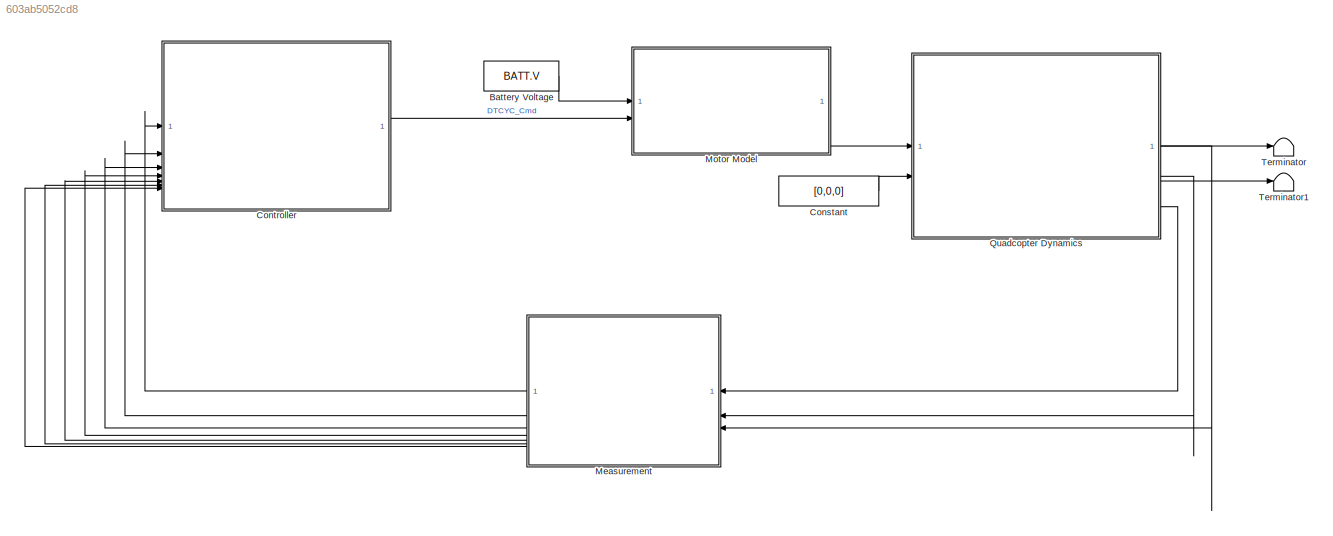
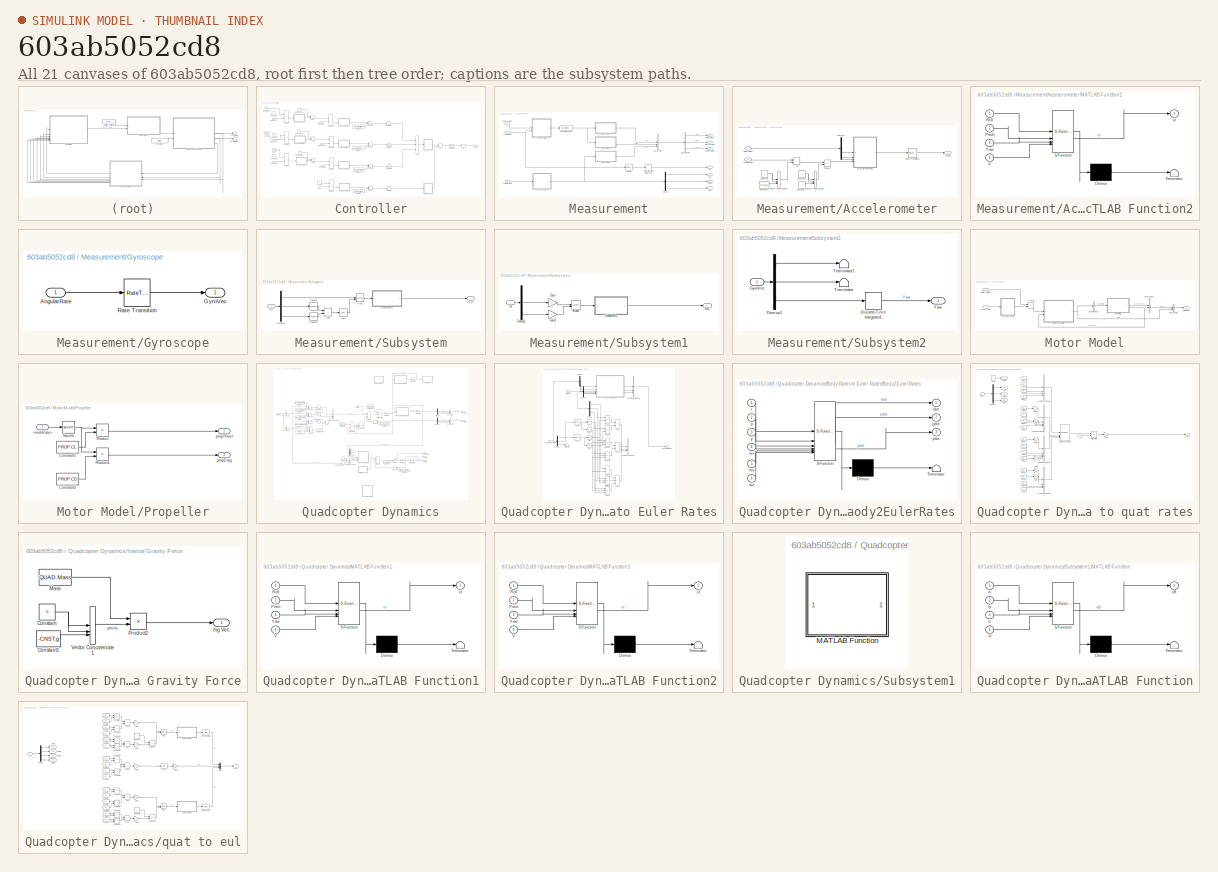
[diagram: thumbnail index - all 21 canvases of the model, root first then tree order]
MODEL slx_603ab5052cd8
KIND model
CONFIG AbsTol = auto
CONFIG EnableMultiTasking = off
CONFIG FixedStep = CNFG_TSTEP
CONFIG MaxStep = auto
CONFIG MinStep = auto
CONFIG RelTol = 1e-3
CONFIG SampleTimeConstraint = Unconstrained
CONFIG SolverName = FixedStepAuto
CONFIG StartTime = 0.0
CONFIG StopTime = CNFG_TEND
BLOCK [Constant] Battery Voltage
  SampleTime = 0
  Value = BATT.V
BLOCK [Constant] Constant
  Value = [0,0,0]
BLOCK [SubSystem] Controller
BLOCK [Sum] Controller/Add
  IconShape = rectangular
  Inputs = +++
BLOCK [Sum] Controller/Add1
  IconShape = rectangular
BLOCK [Sum] Controller/Add2
  IconShape = rectangular
BLOCK [Sum] Controller/Add3
  IconShape = rectangular
BLOCK [Sum] Controller/Add4
  IconShape = rectangular
BLOCK [Outport] Controller/Cmd
BLOCK [Rounding] Controller/Fix
  Operator = fix
BLOCK [Constant] Controller/Omega Cmd
  Value = 0
BLOCK [Constant] Controller/Omega Cmd1
  Value = 0
BLOCK [Constant] Controller/Omega Cmd2
  Value = 0
BLOCK [SubSystem] Controller/PI_to_DTCYC
  ReferencedSubsystem = subrMap
  XL = -1
  XU = 1
  YL = -500
  YU = 500
BLOCK [SubSystem] Controller/PI_to_DTCYC1
  ReferencedSubsystem = subrMap
  XL = -1
  XU = 1
  YL = 1000
  YU = 2000
BLOCK [Inport] Controller/PitchPosFb
  Port = 2
BLOCK [Inport] Controller/PitchRateFb
  NameLocation = top
  Port = 5
BLOCK [Product] Controller/Product
BLOCK [Product] Controller/Product1
BLOCK [Product] Controller/Product2
BLOCK [Product] Controller/Product6
BLOCK [Inport] Controller/RollPosFb
  Port = 3
BLOCK [Inport] Controller/RollRateFb
  NameLocation = top
  Port = 6
BLOCK [Saturate] Controller/Saturation
  LowerLimit = -0.2
  UpperLimit = 0.2
BLOCK [Saturate] Controller/Saturation1
  LowerLimit = -0.4
  UpperLimit = 0.4
BLOCK [Saturate] Controller/Saturation2
  LowerLimit = -0.4
  UpperLimit = 0.4
BLOCK [Saturate] Controller/Saturation3
  LowerLimit = -1
  UpperLimit = 1
BLOCK [Saturate] Controller/Saturation4
  LowerLimit = 1000
  UpperLimit = 2000
BLOCK [Sin] Controller/Sine Wave
  Amplitude = -2*pi/180
  Frequency = 2*2*pi
  SampleTime = 0
BLOCK [Sin] Controller/Sine Wave1
  Amplitude = -2*pi/180
  Frequency = 2*2*pi
  Phase = pi/2
  SampleTime = 0
BLOCK [Step] Controller/Step
  After = pi
  SampleTime = 0
  Time = 0
BLOCK [SubSystem] Controller/Subsystem
  Kd = 0
  Ki = 0.5
  Ki_Sat = inf
  Kp = 10
  ReferencedSubsystem = subrPID
  TSTEP = CNTR.TSTEP
BLOCK [SubSystem] Controller/Subsystem1
  Kd = 0
  Ki = 0.001
  Ki_Sat = inf
  Kp = 30
  ReferencedSubsystem = subrPID
  TSTEP = CNTR.TSTEP
BLOCK [SubSystem] Controller/Subsystem2
  Kd = 0
  Ki = 0.001
  Ki_Sat = inf
  Kp = 30
  ReferencedSubsystem = subrPID
  TSTEP = CNTR.TSTEP
BLOCK [SubSystem] Controller/Subsystem3
  Kd = 0
  Ki = 0
  Ki_Sat = inf
  Kp = 10
  ReferencedSubsystem = subrPID
  TSTEP = CNTR.TSTEP
BLOCK [SubSystem] Controller/Subsystem4
  Kd = 0
  Ki = 0
  Ki_Sat = inf
  Kp = 2
  ReferencedSubsystem = subrPID
  TSTEP = CNTR.TSTEP
BLOCK [SubSystem] Controller/Subsystem5
  Kd = 0
  Ki = 0
  Ki_Sat = inf
  Kp = 2
  ReferencedSubsystem = subrPID
  TSTEP = CNTR.TSTEP
BLOCK [SubSystem] Controller/Subsystem6
  Kd = 0
  Ki = 0
  Ki_Sat = inf
  Kp = 2
  ReferencedSubsystem = subrPID
  TSTEP = CNTR.TSTEP
BLOCK [Sum] Controller/Subtract1
  IconShape = rectangular
  Inputs = +-
BLOCK [Sum] Controller/Subtract2
  IconShape = rectangular
  Inputs = +-
BLOCK [Sum] Controller/Subtract3
  IconShape = rectangular
  Inputs = +-
BLOCK [Sum] Controller/Subtract4
  IconShape = rectangular
  Inputs = +-
BLOCK [Sum] Controller/Subtract5
  IconShape = rectangular
  Inputs = +-
BLOCK [Sum] Controller/Subtract6
  IconShape = rectangular
  Inputs = +-
BLOCK [Sum] Controller/Subtract7
  IconShape = rectangular
  Inputs = +-
BLOCK [Constant] Controller/Theta Cmd1
  Value = 0.2
BLOCK [Constant] Controller/Theta Cmd2
  Value = 0.1
BLOCK [Constant] Controller/Theta Cmd3
  Value = 0
BLOCK [Inport] Controller/Vz
  Port = 7
BLOCK [Constant] Controller/Vz Cmd
  Value = 0
BLOCK [Inport] Controller/YawPosFb
BLOCK [Inport] Controller/YawRateFb
  NameLocation = top
  Port = 4
BLOCK [Constant] Controller/tqmap
  Value = QUAD.PitchMap
BLOCK [Constant] Controller/tqmap2
  Value = QUAD.RollMap
BLOCK [Constant] Controller/tqmap3
  Value = QUAD.VelMap
BLOCK [Constant] Controller/tqmap6
  Value = QUAD.YawMap
BLOCK [SubSystem] Measurement
BLOCK [Outport] Measurement/<wx>
  Port = 6
BLOCK [Outport] Measurement/<wy>
  Port = 5
BLOCK [Outport] Measurement/<wz>
  Port = 4
BLOCK [Inport] Measurement/Acceleration
BLOCK [SubSystem] Measurement/Accelerometer
BLOCK [Inport] Measurement/Accelerometer/Acceleration
  Port = 2
BLOCK [Outport] Measurement/Accelerometer/AcclVec
BLOCK [Sum] Measurement/Accelerometer/Add
  IconShape = rectangular
BLOCK [Constant] Measurement/Accelerometer/Constant
  Value = 0
BLOCK [Constant] Measurement/Accelerometer/Constant1
  Value = +CNST.g
BLOCK [Constant] Measurement/Accelerometer/Constant2
  Value = -1
BLOCK [Constant] Measurement/Accelerometer/Constant3
  Value = 0
BLOCK [Demux] Measurement/Accelerometer/Demux3
  Outputs = 3
BLOCK [Inport] Measurement/Accelerometer/EulerAngles
BLOCK [SubSystem] Measurement/Accelerometer/MATLAB Function2
  ErrorFcn = Stateflow.Translate.translate
  PermitHierarchicalResolution = ExplicitOnly
  SFBlockType = MATLAB Function
  TreatAsAtomicUnit = on
BLOCK [Demux] Measurement/Accelerometer/MATLAB Function2/ Demux 
  Outputs = 1
BLOCK [S-Function] Measurement/Accelerometer/MATLAB Function2/ SFunction 
  EnableBusSupport = on
  FunctionName = sf_sfun
  PortCounts = [4 2]
  SFcnIsStateOwnerBlock = off
  SFunctionDeploymentMode = off
  Tag = Stateflow S-Function 4
BLOCK [Terminator] Measurement/Accelerometer/MATLAB Function2/ Terminator 
BLOCK [Inport] Measurement/Accelerometer/MATLAB Function2/Pitch
  Port = 2
BLOCK [Inport] Measurement/Accelerometer/MATLAB Function2/Roll
BLOCK [Inport] Measurement/Accelerometer/MATLAB Function2/V
  Port = 4
BLOCK [Inport] Measurement/Accelerometer/MATLAB Function2/Yaw
  Port = 3
BLOCK [Outport] Measurement/Accelerometer/MATLAB Function2/vI
BLOCK [Product] Measurement/Accelerometer/Product
BLOCK [RateTransition] Measurement/Accelerometer/Rate Transition1
  OutPortSampleTime = CNTR.TSTEP
BLOCK [Concatenate] Measurement/Accelerometer/Vector Concatenate1
  NumInputs = 3
BLOCK [Concatenate] Measurement/Accelerometer/Vector Concatenate2
  NumInputs = 3
BLOCK [Inport] Measurement/AngularRate
  Port = 2
BLOCK [BusCreator] Measurement/Bus Creator
  DisplayOption = bar
  InheritFromInputs = on
  Inputs = 3
BLOCK [BusSelector] Measurement/Bus Selector
  OutputSignals = Roll,Pitch,Yaw
BLOCK [Demux] Measurement/Demux
  Outputs = 3
BLOCK [DiscreteIntegrator] Measurement/Discrete-Time Integrator
  ICPrevOutput = DiscIntNeverNeededParam
  ICPrevScaledInput = DiscIntNeverNeededParam
  InitialConditionSetting = Auto
  IntegratorMethod = Integration: Backward Euler
  SampleTime = -1
BLOCK [Inport] Measurement/EulerAngles
  Port = 3
BLOCK [SubSystem] Measurement/Gyroscope
BLOCK [Inport] Measurement/Gyroscope/AngularRate
BLOCK [Outport] Measurement/Gyroscope/GyroVec
BLOCK [RateTransition] Measurement/Gyroscope/Rate Transition
  OutPortSampleTime = CNTR.TSTEP
BLOCK [Reference] Measurement/Normalize Vector  REF=vrlib/Utilities/Normalize Vector
  SourceBlock = vrlib/Utilities/Normalize Vector
  SourceType = Normalize Vector
BLOCK [Outport] Measurement/PitchPosMeas
  Port = 2
BLOCK [Outport] Measurement/RollPosMeas
  Port = 3
BLOCK [Selector] Measurement/Selector
  IndexOptions = Index vector (dialog)
  Indices = [3]
  InputPortWidth = 3
  OutputSizes = 1
BLOCK [SubSystem] Measurement/Subsystem
BLOCK [Sum] Measurement/Subsystem/Add1
  IconShape = rectangular
BLOCK [Trigonometry] Measurement/Subsystem/Atan1
  Operator = atan2
BLOCK [Demux] Measurement/Subsystem/Demux1
  Outputs = 3
BLOCK [Inport] Measurement/Subsystem/In1
BLOCK [Outport] Measurement/Subsystem/Pitch
BLOCK [Sqrt] Measurement/Subsystem/Sqrt
  IntermediateResultsDataTypeStr = double
BLOCK [Math] Measurement/Subsystem/Square
  Operator = square
BLOCK [Math] Measurement/Subsystem/Square3
  Operator = square
BLOCK [SubSystem] Measurement/Subsystem/Subsystem1
  ReferencedSubsystem = subrUnwrap
BLOCK [SubSystem] Measurement/Subsystem1
BLOCK [Trigonometry] Measurement/Subsystem1/Atan1
  Operator = atan2
BLOCK [Demux] Measurement/Subsystem1/Demux1
  Outputs = 3
BLOCK [Gain] Measurement/Subsystem1/Gain
  Gain = -1
BLOCK [Gain] Measurement/Subsystem1/Gain2
  Gain = -1
BLOCK [Inport] Measurement/Subsystem1/In1
BLOCK [Outport] Measurement/Subsystem1/Roll
BLOCK [SubSystem] Measurement/Subsystem1/Subsystem1
  ReferencedSubsystem = subrUnwrap
BLOCK [SubSystem] Measurement/Subsystem2
BLOCK [Demux] Measurement/Subsystem2/Demux1
  Outputs = 3
BLOCK [DiscreteIntegrator] Measurement/Subsystem2/Discrete-Time Integrator1
  ICPrevOutput = DiscIntNeverNeededParam
  ICPrevScaledInput = DiscIntNeverNeededParam
  InitialConditionSetting = Auto
  IntegratorMethod = Integration: Backward Euler
  SampleTime = -1
BLOCK [Inport] Measurement/Subsystem2/GyroVec
BLOCK [Terminator] Measurement/Subsystem2/Terminator
BLOCK [Terminator] Measurement/Subsystem2/Terminator1
BLOCK [Outport] Measurement/Subsystem2/Yaw
BLOCK [Outport] Measurement/Vz
  Port = 7
BLOCK [Outport] Measurement/YawPosMeas
BLOCK [SubSystem] Motor Model
BLOCK [Inport] Motor Model/Battery Voltage
BLOCK [BusCreator] Motor Model/Bus Creator
  DisplayOption = bar
  InheritFromInputs = on
  Inputs = 2
BLOCK [BusCreator] Motor Model/Bus Creator1
  DisplayOption = bar
  InheritFromInputs = on
  Inputs = 2
BLOCK [BusSelector] Motor Model/Bus Selector1
  OutputSignals = motrRate
BLOCK [Inport] Motor Model/DTCYC_Cmd
  Port = 2
BLOCK [SubSystem] Motor Model/DTCYC_to_Vscale
  ReferencedSubsystem = subrMap
  XL = 1000
  XU = 2000
  YL = 0
  YU = 1
BLOCK [Outport] Motor Model/MotorBus
BLOCK [Product] Motor Model/Product7
BLOCK [SubSystem] Motor Model/Propeller
BLOCK [Inport] Motor Model/Propeller/<motrRate>
BLOCK [Constant] Motor Model/Propeller/Constant1
  Value = PROP.CL
BLOCK [Constant] Motor Model/Propeller/Constant2
  Value = PROP.CD
BLOCK [Product] Motor Model/Propeller/Product
BLOCK [Product] Motor Model/Propeller/Product1
BLOCK [Math] Motor Model/Propeller/Square
  Operator = square
BLOCK [Outport] Motor Model/Propeller/propDrag
  Port = 2
BLOCK [Outport] Motor Model/Propeller/propThrust
BLOCK [SubSystem] Motor Model/Single Phase Motor
  B = MOTR.B
  D = MOTR.D
  J = MOTR.J
  KB = MOTR.KB
  KT = MOTR.KT
  LL = MOTR.LL
  RL = MOTR.RL
  ReferencedSubsystem = subrSinglePhaseMotor
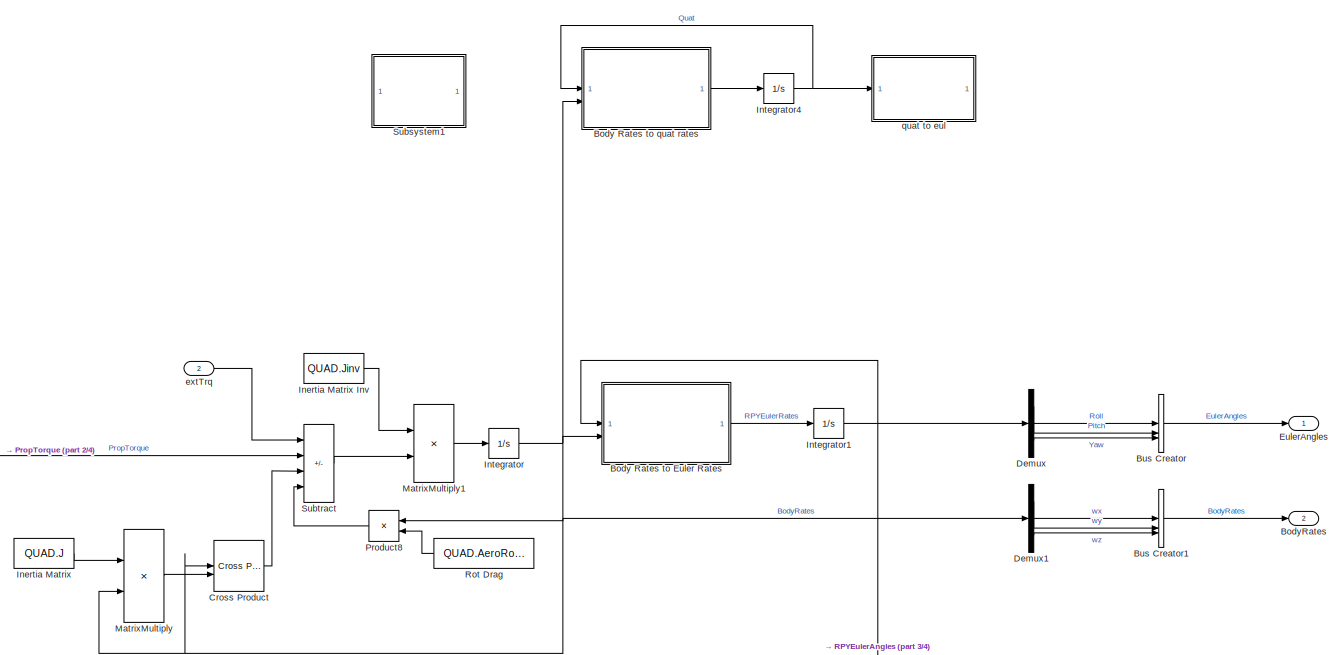
[diagram: Quadcopter Dynamics - part 1/4, top center region]
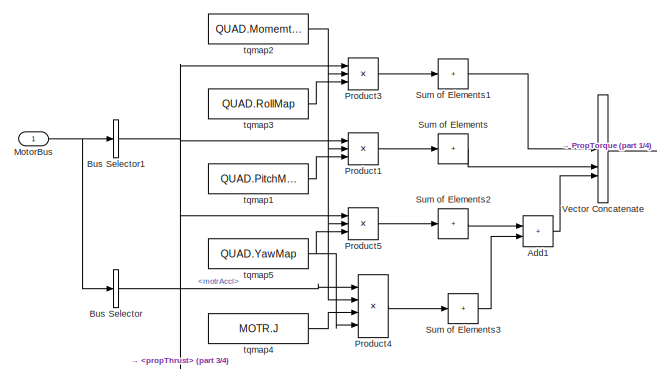
[diagram: Quadcopter Dynamics - part 2/4, middle left region]
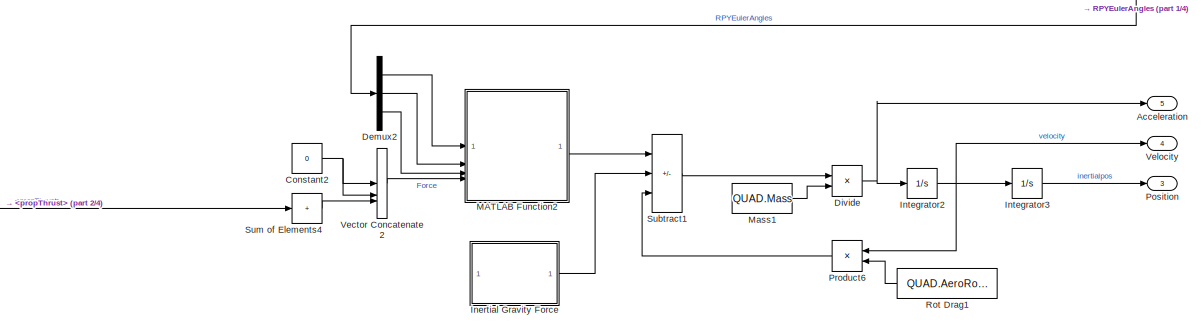
[diagram: Quadcopter Dynamics - part 3/4, bottom center region]
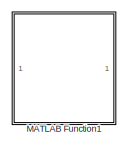
[diagram: Quadcopter Dynamics - part 4/4, bottom center region]
BLOCK [SubSystem] Quadcopter Dynamics
BLOCK [Outport] Quadcopter Dynamics/Acceleration
  Port = 5
BLOCK [Sum] Quadcopter Dynamics/Add1
  IconShape = rectangular
BLOCK [SubSystem] Quadcopter Dynamics/Body Rates to Euler Rates
BLOCK [Sum] Quadcopter Dynamics/Body Rates to Euler Rates/Add
  Commented = on
  IconShape = rectangular
BLOCK [Sum] Quadcopter Dynamics/Body Rates to Euler Rates/Add1
  Commented = on
  IconShape = rectangular
  Inputs = +-
BLOCK [Sum] Quadcopter Dynamics/Body Rates to Euler Rates/Add2
  Commented = on
  IconShape = rectangular
  Inputs = +++
BLOCK [SubSystem] Quadcopter Dynamics/Body Rates to Euler Rates/Body2EulerRates
  ErrorFcn = Stateflow.Translate.translate
  PermitHierarchicalResolution = ExplicitOnly
  SFBlockType = MATLAB Function
  TreatAsAtomicUnit = on
BLOCK [Demux] Quadcopter Dynamics/Body Rates to Euler Rates/Body2EulerRates/ Demux 
  Outputs = 1
BLOCK [S-Function] Quadcopter Dynamics/Body Rates to Euler Rates/Body2EulerRates/ SFunction 
  EnableBusSupport = on
  FunctionName = sf_sfun
  PortCounts = [6 4]
  SFcnIsStateOwnerBlock = off
  SFunctionDeploymentMode = off
  Tag = Stateflow S-Function 3
BLOCK [Terminator] Quadcopter Dynamics/Body Rates to Euler Rates/Body2EulerRates/ Terminator 
BLOCK [Inport] Quadcopter Dynamics/Body Rates to Euler Rates/Body2EulerRates/p
  Port = 2
BLOCK [Outport] Quadcopter Dynamics/Body Rates to Euler Rates/Body2EulerRates/pdot
  Port = 2
BLOCK [Inport] Quadcopter Dynamics/Body Rates to Euler Rates/Body2EulerRates/r
BLOCK [Outport] Quadcopter Dynamics/Body Rates to Euler Rates/Body2EulerRates/rdot
BLOCK [Inport] Quadcopter Dynamics/Body Rates to Euler Rates/Body2EulerRates/wx
  Port = 4
BLOCK [Inport] Quadcopter Dynamics/Body Rates to Euler Rates/Body2EulerRates/wy
  Port = 5
BLOCK [Inport] Quadcopter Dynamics/Body Rates to Euler Rates/Body2EulerRates/wz
  Port = 6
BLOCK [Inport] Quadcopter Dynamics/Body Rates to Euler Rates/Body2EulerRates/y
  Port = 3
BLOCK [Outport] Quadcopter Dynamics/Body Rates to Euler Rates/Body2EulerRates/ydot
  Port = 3
BLOCK [Trigonometry] Quadcopter Dynamics/Body Rates to Euler Rates/Cos1
  Commented = on
  Operator = cos
BLOCK [Trigonometry] Quadcopter Dynamics/Body Rates to Euler Rates/Cos2
  Commented = on
  Operator = cos
BLOCK [Demux] Quadcopter Dynamics/Body Rates to Euler Rates/Demux
  Commented = on
  Outputs = 3
BLOCK [Demux] Quadcopter Dynamics/Body Rates to Euler Rates/Demux1
  Outputs = 3
BLOCK [Demux] Quadcopter Dynamics/Body Rates to Euler Rates/Demux2
  Outputs = 3
BLOCK [Demux] Quadcopter Dynamics/Body Rates to Euler Rates/Demux3
  Outputs = 3
BLOCK [Product] Quadcopter Dynamics/Body Rates to Euler Rates/Divide
  Commented = on
  Inputs = **
BLOCK [Product] Quadcopter Dynamics/Body Rates to Euler Rates/Divide1
  Commented = on
  Inputs = ***
BLOCK [Product] Quadcopter Dynamics/Body Rates to Euler Rates/Divide2
  Commented = on
  Inputs = ***
BLOCK [Inport] Quadcopter Dynamics/Body Rates to Euler Rates/Omega
  Port = 2
BLOCK [SignalConversion] Quadcopter Dynamics/Body Rates to Euler Rates/Phi
  Commented = on
  OverrideOpt = off
BLOCK [Product] Quadcopter Dynamics/Body Rates to Euler Rates/Product
  Commented = on
BLOCK [Product] Quadcopter Dynamics/Body Rates to Euler Rates/Product1
  Commented = on
BLOCK [Product] Quadcopter Dynamics/Body Rates to Euler Rates/Product2
  Commented = on
  Inputs = 3
BLOCK [Product] Quadcopter Dynamics/Body Rates to Euler Rates/Product3
  Commented = on
  Inputs = 3
BLOCK [Inport] Quadcopter Dynamics/Body Rates to Euler Rates/RPY Euler Angles
BLOCK [Outport] Quadcopter Dynamics/Body Rates to Euler Rates/RPY Euler Rates
BLOCK [Trigonometry] Quadcopter Dynamics/Body Rates to Euler Rates/Sin2
  Commented = on
BLOCK [Trigonometry] Quadcopter Dynamics/Body Rates to Euler Rates/Tan
  Commented = on
BLOCK [Terminator] Quadcopter Dynamics/Body Rates to Euler Rates/Terminator
BLOCK [SignalConversion] Quadcopter Dynamics/Body Rates to Euler Rates/Theta
  Commented = on
  OverrideOpt = off
BLOCK [Concatenate] Quadcopter Dynamics/Body Rates to Euler Rates/Vector Concatenate
  Commented = on
  NumInputs = 3
BLOCK [Concatenate] Quadcopter Dynamics/Body Rates to Euler Rates/Vector Concatenate1
  NumInputs = 3
BLOCK [SubSystem] Quadcopter Dynamics/Body Rates to quat rates
  Commented = on
BLOCK [Demux] Quadcopter Dynamics/Body Rates to quat rates/Demux2
  Outputs = 3
BLOCK [From] Quadcopter Dynamics/Body Rates to quat rates/From
  GotoTag = z
BLOCK [From] Quadcopter Dynamics/Body Rates to quat rates/From1
  GotoTag = z
BLOCK [From] Quadcopter Dynamics/Body Rates to quat rates/From10
  GotoTag = wy
BLOCK [From] Quadcopter Dynamics/Body Rates to quat rates/From11
  GotoTag = wy
BLOCK [From] Quadcopter Dynamics/Body Rates to quat rates/From12
  GotoTag = wz
BLOCK [From] Quadcopter Dynamics/Body Rates to quat rates/From13
  GotoTag = wz
BLOCK [From] Quadcopter Dynamics/Body Rates to quat rates/From14
  GotoTag = wz
BLOCK [From] Quadcopter Dynamics/Body Rates to quat rates/From15
  GotoTag = wz
BLOCK [From] Quadcopter Dynamics/Body Rates to quat rates/From2
  GotoTag = z
BLOCK [From] Quadcopter Dynamics/Body Rates to quat rates/From3
  GotoTag = z
BLOCK [From] Quadcopter Dynamics/Body Rates to quat rates/From4
  GotoTag = wx
BLOCK [From] Quadcopter Dynamics/Body Rates to quat rates/From5
  GotoTag = wx
BLOCK [From] Quadcopter Dynamics/Body Rates to quat rates/From6
  GotoTag = wx
BLOCK [From] Quadcopter Dynamics/Body Rates to quat rates/From7
  GotoTag = wx
BLOCK [From] Quadcopter Dynamics/Body Rates to quat rates/From8
  GotoTag = wy
BLOCK [From] Quadcopter Dynamics/Body Rates to quat rates/From9
  GotoTag = wy
BLOCK [Gain] Quadcopter Dynamics/Body Rates to quat rates/Gain1
  Gain = -1
BLOCK [Gain] Quadcopter Dynamics/Body Rates to quat rates/Gain2
  Gain = -1
BLOCK [Gain] Quadcopter Dynamics/Body Rates to quat rates/Gain3
  Gain = -1
BLOCK [Gain] Quadcopter Dynamics/Body Rates to quat rates/Gain4
  Gain = -1
BLOCK [Gain] Quadcopter Dynamics/Body Rates to quat rates/Gain5
  Gain = -1
BLOCK [Gain] Quadcopter Dynamics/Body Rates to quat rates/Gain6
  Gain = 0.5
BLOCK [Gain] Quadcopter Dynamics/Body Rates to quat rates/Gain7
  Gain = -1
BLOCK [Goto] Quadcopter Dynamics/Body Rates to quat rates/Goto
  GotoTag = wx
BLOCK [Goto] Quadcopter Dynamics/Body Rates to quat rates/Goto1
  GotoTag = wy
BLOCK [Goto] Quadcopter Dynamics/Body Rates to quat rates/Goto2
  GotoTag = wz
BLOCK [Goto] Quadcopter Dynamics/Body Rates to quat rates/Goto3
  GotoTag = z
BLOCK [Concatenate] Quadcopter Dynamics/Body Rates to quat rates/Matrix Concatenate
  ConcatenateDimension = 2
  Mode = Multidimensional array
  NumInputs = 4
BLOCK [Product] Quadcopter Dynamics/Body Rates to quat rates/MatrixMultiply
  Multiplication = Matrix(*)
BLOCK [Inport] Quadcopter Dynamics/Body Rates to quat rates/Omega
  Port = 2
BLOCK [Concatenate] Quadcopter Dynamics/Body Rates to quat rates/Vector Concatenate1
  NumInputs = 4
BLOCK [Concatenate] Quadcopter Dynamics/Body Rates to quat rates/Vector Concatenate2
  NumInputs = 4
BLOCK [Concatenate] Quadcopter Dynamics/Body Rates to quat rates/Vector Concatenate3
  NumInputs = 4
BLOCK [Concatenate] Quadcopter Dynamics/Body Rates to quat rates/Vector Concatenate4
  NumInputs = 4
BLOCK [Constant] Quadcopter Dynamics/Body Rates to quat rates/Zero
  OutDataTypeStr = Inherit: Inherit via back propagation
  Value = 0
BLOCK [Outport] Quadcopter Dynamics/Body Rates to quat rates/dq
BLOCK [Inport] Quadcopter Dynamics/Body Rates to quat rates/q
BLOCK [Outport] Quadcopter Dynamics/BodyRates
  Port = 2
BLOCK [BusCreator] Quadcopter Dynamics/Bus Creator
  DisplayOption = bar
  InheritFromInputs = on
  Inputs = 3
BLOCK [BusCreator] Quadcopter Dynamics/Bus Creator1
  DisplayOption = bar
  InheritFromInputs = on
  Inputs = 3
BLOCK [BusSelector] Quadcopter Dynamics/Bus Selector
  OutputSignals = Motor.motrAccl
BLOCK [BusSelector] Quadcopter Dynamics/Bus Selector1
  OutputSignals = Prop.propThrust
BLOCK [Constant] Quadcopter Dynamics/Constant2
  Value = 0
BLOCK [Reference] Quadcopter Dynamics/Cross Product  REF=matrix_library/Cross Product
  LibrarySourceBlock = simulink/Matrix\nOperations/Cross Product
  SourceBlock = matrix_library/Cross Product
  SourceType = CrossProduct
BLOCK [Demux] Quadcopter Dynamics/Demux
  Outputs = 3
BLOCK [Demux] Quadcopter Dynamics/Demux1
  Outputs = 3
BLOCK [Demux] Quadcopter Dynamics/Demux2
  Outputs = 3
BLOCK [Product] Quadcopter Dynamics/Divide
  Inputs = */
BLOCK [Outport] Quadcopter Dynamics/EulerAngles
BLOCK [Constant] Quadcopter Dynamics/Inertia Matrix
  Value = QUAD.J
BLOCK [Constant] Quadcopter Dynamics/Inertia Matrix Inv
  Value = QUAD.Jinv
BLOCK [SubSystem] Quadcopter Dynamics/Inertial Gravity Force
BLOCK [Constant] Quadcopter Dynamics/Inertial Gravity Force/Constant
  Value = 0
BLOCK [Constant] Quadcopter Dynamics/Inertial Gravity Force/Constant1
  Value = -CNST.g
BLOCK [Constant] Quadcopter Dynamics/Inertial Gravity Force/Mass
  Value = QUAD.Mass
BLOCK [Product] Quadcopter Dynamics/Inertial Gravity Force/Product2
BLOCK [Concatenate] Quadcopter Dynamics/Inertial Gravity Force/Vector Concatenate1
  NumInputs = 3
BLOCK [Outport] Quadcopter Dynamics/Inertial Gravity Force/mg Vec
BLOCK [Integrator] Quadcopter Dynamics/Integrator
BLOCK [Integrator] Quadcopter Dynamics/Integrator1
  InitialCondition = [QUAD.RollIC, QUAD.PitchIC, Quad.YawIC]
BLOCK [Integrator] Quadcopter Dynamics/Integrator2
BLOCK [Integrator] Quadcopter Dynamics/Integrator3
BLOCK [Integrator] Quadcopter Dynamics/Integrator4
  Commented = on
  InitialCondition = [1,0,0,0]
BLOCK [SubSystem] Quadcopter Dynamics/MATLAB Function1
  Commented = on
  ErrorFcn = Stateflow.Translate.translate
  PermitHierarchicalResolution = ExplicitOnly
  SFBlockType = MATLAB Function
  TreatAsAtomicUnit = on
BLOCK [Demux] Quadcopter Dynamics/MATLAB Function1/ Demux 
  Outputs = 1
BLOCK [S-Function] Quadcopter Dynamics/MATLAB Function1/ SFunction 
  EnableBusSupport = on
  FunctionName = sf_sfun
  PortCounts = [4 2]
  SFcnIsStateOwnerBlock = off
  SFunctionDeploymentMode = off
  Tag = Stateflow S-Function 1
BLOCK [Terminator] Quadcopter Dynamics/MATLAB Function1/ Terminator 
BLOCK [Inport] Quadcopter Dynamics/MATLAB Function1/Pitch
  Port = 2
BLOCK [Inport] Quadcopter Dynamics/MATLAB Function1/Roll
BLOCK [Inport] Quadcopter Dynamics/MATLAB Function1/V
  Port = 4
BLOCK [Inport] Quadcopter Dynamics/MATLAB Function1/Yaw
  Port = 3
BLOCK [Outport] Quadcopter Dynamics/MATLAB Function1/vI
BLOCK [SubSystem] Quadcopter Dynamics/MATLAB Function2
  ErrorFcn = Stateflow.Translate.translate
  PermitHierarchicalResolution = ExplicitOnly
  SFBlockType = MATLAB Function
  TreatAsAtomicUnit = on
BLOCK [Demux] Quadcopter Dynamics/MATLAB Function2/ Demux 
  Outputs = 1
BLOCK [S-Function] Quadcopter Dynamics/MATLAB Function2/ SFunction 
  EnableBusSupport = on
  FunctionName = sf_sfun
  PortCounts = [4 2]
  SFcnIsStateOwnerBlock = off
  SFunctionDeploymentMode = off
  Tag = Stateflow S-Function 5
BLOCK [Terminator] Quadcopter Dynamics/MATLAB Function2/ Terminator 
BLOCK [Inport] Quadcopter Dynamics/MATLAB Function2/Pitch
  Port = 2
BLOCK [Inport] Quadcopter Dynamics/MATLAB Function2/Roll
BLOCK [Inport] Quadcopter Dynamics/MATLAB Function2/V
  Port = 4
BLOCK [Inport] Quadcopter Dynamics/MATLAB Function2/Yaw
  Port = 3
BLOCK [Outport] Quadcopter Dynamics/MATLAB Function2/vI
BLOCK [Constant] Quadcopter Dynamics/Mass1
  Value = QUAD.Mass
BLOCK [Product] Quadcopter Dynamics/MatrixMultiply
  Multiplication = Matrix(*)
BLOCK [Product] Quadcopter Dynamics/MatrixMultiply1
  Multiplication = Matrix(*)
BLOCK [Inport] Quadcopter Dynamics/MotorBus
BLOCK [Outport] Quadcopter Dynamics/Position
  Port = 3
BLOCK [Product] Quadcopter Dynamics/Product1
  Inputs = 3
BLOCK [Product] Quadcopter Dynamics/Product3
  Inputs = 3
BLOCK [Product] Quadcopter Dynamics/Product4
  Inputs = 4
BLOCK [Product] Quadcopter Dynamics/Product5
  Inputs = 3
BLOCK [Product] Quadcopter Dynamics/Product6
  NameLocation = top
BLOCK [Product] Quadcopter Dynamics/Product8
  NameLocation = top
BLOCK [Constant] Quadcopter Dynamics/Rot Drag
  NameLocation = top
  Value = QUAD.AeroRotDrag
BLOCK [Constant] Quadcopter Dynamics/Rot Drag1
  NameLocation = top
  Value = QUAD.AeroRotDrag
BLOCK [SubSystem] Quadcopter Dynamics/Subsystem1
  Commented = on
BLOCK [SubSystem] Quadcopter Dynamics/Subsystem1/MATLAB Function
  Commented = on
  ErrorFcn = Stateflow.Translate.translate
  PermitHierarchicalResolution = ExplicitOnly
  SFBlockType = MATLAB Function
  TreatAsAtomicUnit = on
BLOCK [Demux] Quadcopter Dynamics/Subsystem1/MATLAB Function/ Demux 
  Outputs = 1
BLOCK [S-Function] Quadcopter Dynamics/Subsystem1/MATLAB Function/ SFunction 
  EnableBusSupport = on
  FunctionName = sf_sfun
  PortCounts = [4 2]
  SFcnIsStateOwnerBlock = off
  SFunctionDeploymentMode = off
  Tag = Stateflow S-Function 2
BLOCK [Terminator] Quadcopter Dynamics/Subsystem1/MATLAB Function/ Terminator 
BLOCK [Inport] Quadcopter Dynamics/Subsystem1/MATLAB Function/rx
BLOCK [Inport] Quadcopter Dynamics/Subsystem1/MATLAB Function/ry
  Port = 2
BLOCK [Inport] Quadcopter Dynamics/Subsystem1/MATLAB Function/rz
  Port = 3
BLOCK [Outport] Quadcopter Dynamics/Subsystem1/MATLAB Function/vB
BLOCK [Inport] Quadcopter Dynamics/Subsystem1/MATLAB Function/vI
  Port = 4
BLOCK [Sum] Quadcopter Dynamics/Subtract
  IconShape = rectangular
  Inputs = ++--
BLOCK [Sum] Quadcopter Dynamics/Subtract1
  IconShape = rectangular
  Inputs = ++-
BLOCK [Sum] Quadcopter Dynamics/Sum of Elements
  IconShape = rectangular
  Inputs = +
BLOCK [Sum] Quadcopter Dynamics/Sum of Elements1
  IconShape = rectangular
  Inputs = +
BLOCK [Sum] Quadcopter Dynamics/Sum of Elements2
  IconShape = rectangular
  Inputs = +
BLOCK [Sum] Quadcopter Dynamics/Sum of Elements3
  IconShape = rectangular
  Inputs = +
BLOCK [Sum] Quadcopter Dynamics/Sum of Elements4
  IconShape = rectangular
  Inputs = +
BLOCK [Concatenate] Quadcopter Dynamics/Vector Concatenate
  NumInputs = 3
BLOCK [Concatenate] Quadcopter Dynamics/Vector Concatenate2
  NumInputs = 3
BLOCK [Outport] Quadcopter Dynamics/Velocity
  Port = 4
BLOCK [Inport] Quadcopter Dynamics/extTrq
  Port = 2
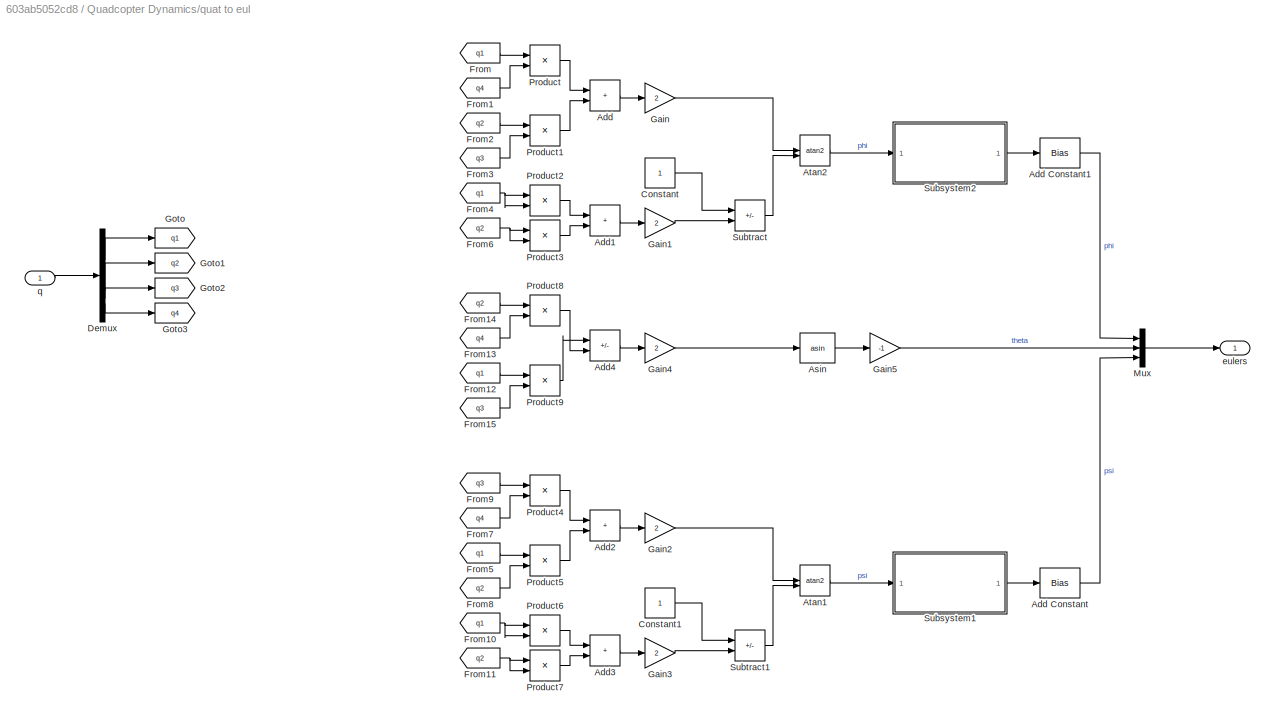
BLOCK [SubSystem] Quadcopter Dynamics/quat to eul
  Commented = on
BLOCK [Sum] Quadcopter Dynamics/quat to eul/Add
  IconShape = rectangular
BLOCK [Bias] Quadcopter Dynamics/quat to eul/Add Constant
  Bias = -pi
  SaturateOnIntegerOverflow = off
BLOCK [Bias] Quadcopter Dynamics/quat to eul/Add Constant1
  Bias = -pi
  SaturateOnIntegerOverflow = off
BLOCK [Sum] Quadcopter Dynamics/quat to eul/Add1
  IconShape = rectangular
BLOCK [Sum] Quadcopter Dynamics/quat to eul/Add2
  IconShape = rectangular
BLOCK [Sum] Quadcopter Dynamics/quat to eul/Add3
  IconShape = rectangular
BLOCK [Sum] Quadcopter Dynamics/quat to eul/Add4
  IconShape = rectangular
  Inputs = +-
BLOCK [Trigonometry] Quadcopter Dynamics/quat to eul/Asin
  Operator = asin
BLOCK [Trigonometry] Quadcopter Dynamics/quat to eul/Atan1
  Operator = atan2
BLOCK [Trigonometry] Quadcopter Dynamics/quat to eul/Atan2
  Operator = atan2
BLOCK [Constant] Quadcopter Dynamics/quat to eul/Constant
BLOCK [Constant] Quadcopter Dynamics/quat to eul/Constant1
BLOCK [Demux] Quadcopter Dynamics/quat to eul/Demux
BLOCK [From] Quadcopter Dynamics/quat to eul/From
  GotoTag = q1
BLOCK [From] Quadcopter Dynamics/quat to eul/From1
  GotoTag = q4
BLOCK [From] Quadcopter Dynamics/quat to eul/From10
  GotoTag = q1
BLOCK [From] Quadcopter Dynamics/quat to eul/From11
  GotoTag = q2
BLOCK [From] Quadcopter Dynamics/quat to eul/From12
  GotoTag = q1
BLOCK [From] Quadcopter Dynamics/quat to eul/From13
  GotoTag = q4
BLOCK [From] Quadcopter Dynamics/quat to eul/From14
  GotoTag = q2
BLOCK [From] Quadcopter Dynamics/quat to eul/From15
  GotoTag = q3
BLOCK [From] Quadcopter Dynamics/quat to eul/From2
  GotoTag = q2
BLOCK [From] Quadcopter Dynamics/quat to eul/From3
  GotoTag = q3
BLOCK [From] Quadcopter Dynamics/quat to eul/From4
  GotoTag = q1
BLOCK [From] Quadcopter Dynamics/quat to eul/From5
  GotoTag = q1
BLOCK [From] Quadcopter Dynamics/quat to eul/From6
  GotoTag = q2
BLOCK [From] Quadcopter Dynamics/quat to eul/From7
  GotoTag = q4
BLOCK [From] Quadcopter Dynamics/quat to eul/From8
  GotoTag = q2
BLOCK [From] Quadcopter Dynamics/quat to eul/From9
  GotoTag = q3
BLOCK [Gain] Quadcopter Dynamics/quat to eul/Gain
  Gain = 2
BLOCK [Gain] Quadcopter Dynamics/quat to eul/Gain1
  Gain = 2
BLOCK [Gain] Quadcopter Dynamics/quat to eul/Gain2
  Gain = 2
BLOCK [Gain] Quadcopter Dynamics/quat to eul/Gain3
  Gain = 2
BLOCK [Gain] Quadcopter Dynamics/quat to eul/Gain4
  Gain = 2
BLOCK [Gain] Quadcopter Dynamics/quat to eul/Gain5
  Commented = through
  Gain = -1
BLOCK [Goto] Quadcopter Dynamics/quat to eul/Goto
  GotoTag = q1
BLOCK [Goto] Quadcopter Dynamics/quat to eul/Goto1
  GotoTag = q2
BLOCK [Goto] Quadcopter Dynamics/quat to eul/Goto2
  GotoTag = q3
BLOCK [Goto] Quadcopter Dynamics/quat to eul/Goto3
  GotoTag = q4
BLOCK [Mux] Quadcopter Dynamics/quat to eul/Mux
  DisplayOption = bar
  Inputs = 3
BLOCK [Product] Quadcopter Dynamics/quat to eul/Product
BLOCK [Product] Quadcopter Dynamics/quat to eul/Product1
BLOCK [Product] Quadcopter Dynamics/quat to eul/Product2
BLOCK [Product] Quadcopter Dynamics/quat to eul/Product3
BLOCK [Product] Quadcopter Dynamics/quat to eul/Product4
BLOCK [Product] Quadcopter Dynamics/quat to eul/Product5
BLOCK [Product] Quadcopter Dynamics/quat to eul/Product6
BLOCK [Product] Quadcopter Dynamics/quat to eul/Product7
BLOCK [Product] Quadcopter Dynamics/quat to eul/Product8
BLOCK [Product] Quadcopter Dynamics/quat to eul/Product9
BLOCK [SubSystem] Quadcopter Dynamics/quat to eul/Subsystem1
  ReferencedSubsystem = subrUnwrap
BLOCK [SubSystem] Quadcopter Dynamics/quat to eul/Subsystem2
  ReferencedSubsystem = subrUnwrap
BLOCK [Sum] Quadcopter Dynamics/quat to eul/Subtract
  IconShape = rectangular
  Inputs = +-
BLOCK [Sum] Quadcopter Dynamics/quat to eul/Subtract1
  IconShape = rectangular
  Inputs = +-
BLOCK [Outport] Quadcopter Dynamics/quat to eul/eulers
BLOCK [Inport] Quadcopter Dynamics/quat to eul/q
BLOCK [Constant] Quadcopter Dynamics/tqmap1
  Value = QUAD.PitchMap
BLOCK [Constant] Quadcopter Dynamics/tqmap2
  Value = QUAD.MomemtArm
BLOCK [Constant] Quadcopter Dynamics/tqmap3
  Value = QUAD.RollMap
BLOCK [Constant] Quadcopter Dynamics/tqmap4
  Value = MOTR.J
BLOCK [Constant] Quadcopter Dynamics/tqmap5
  Value = QUAD.YawMap
BLOCK [Terminator] Terminator
BLOCK [Terminator] Terminator1
LINE Battery Voltage:1 -> Motor Model:1
LINE Constant:1 -> Quadcopter Dynamics:2
LINE Controller/Add1:1 -> Controller/Saturation4:1
LINE Controller/Add2:1 -> Controller/Subtract2:1
LINE Controller/Add3:1 -> Controller/Subtract1:1
LINE Controller/Add4:1 -> Controller/Subtract5:1
LINE Controller/Add:1 -> Controller/PI_to_DTCYC:1
LINE Controller/Fix:1 -> Controller/Cmd:1
LINE Controller/Omega Cmd1:1 -> Controller/Add2:1
LINE Controller/Omega Cmd2:1 -> Controller/Add4:1
LINE Controller/Omega Cmd:1 -> Controller/Add3:1
LINE Controller/PI_to_DTCYC1:1 -> Controller/Add1:2
LINE Controller/PI_to_DTCYC:1 -> Controller/Add1:1
LINE Controller/PitchPosFb:1 -> Controller/Subtract4:2
LINE Controller/PitchRateFb:1 -> Controller/Subtract1:2
LINE Controller/Product1:1 -> Controller/Saturation3:1
LINE Controller/Product2:1 -> Controller/Saturation2:1
LINE Controller/Product6:1 -> Controller/Saturation:1
LINE Controller/Product:1 -> Controller/Saturation1:1
LINE Controller/RollPosFb:1 -> Controller/Subtract3:2
LINE Controller/RollRateFb:1 -> Controller/Subtract2:2
LINE Controller/Saturation1:1 -> Controller/Add:2
LINE Controller/Saturation2:1 -> Controller/Add:1
LINE Controller/Saturation3:1 -> Controller/PI_to_DTCYC1:1
LINE Controller/Saturation4:1 -> Controller/Fix:1
LINE Controller/Saturation:1 -> Controller/Add:3
LINE Controller/Sine Wave1:1 -> Controller/Subtract3:1
LINE Controller/Sine Wave:1 -> Controller/Subtract4:1
LINE Controller/Step:1 -> Controller/Subtract6:1
LINE Controller/Subsystem1:1 -> Controller/Add2:2
LINE Controller/Subsystem2:1 -> Controller/Add3:2
LINE Controller/Subsystem3:1 -> Controller/Add4:2
LINE Controller/Subsystem4:1 -> Controller/Product2:1
LINE Controller/Subsystem5:1 -> Controller/Product:1
LINE Controller/Subsystem6:1 -> Controller/Product6:1
LINE Controller/Subsystem:1 -> Controller/Product1:1
LINE Controller/Subtract1:1 -> Controller/Subsystem5:1
LINE Controller/Subtract2:1 -> Controller/Subsystem4:1
LINE Controller/Subtract3:1 -> Controller/Subsystem1:1
LINE Controller/Subtract4:1 -> Controller/Subsystem2:1
LINE Controller/Subtract5:1 -> Controller/Subsystem6:1
LINE Controller/Subtract6:1 -> Controller/Subsystem3:1
LINE Controller/Subtract7:1 -> Controller/Subsystem:1
LINE Controller/Vz Cmd:1 -> Controller/Subtract7:1
LINE Controller/Vz:1 -> Controller/Subtract7:2
LINE Controller/YawPosFb:1 -> Controller/Subtract6:2
LINE Controller/YawRateFb:1 -> Controller/Subtract5:2
LINE Controller/tqmap2:1 -> Controller/Product2:2
LINE Controller/tqmap3:1 -> Controller/Product1:2
LINE Controller/tqmap6:1 -> Controller/Product6:2
LINE Controller/tqmap:1 -> Controller/Product:2
LINE Controller:1 -> Motor Model:2
NET Measurement/Acceleration:1 -> Measurement/Accelerometer:2, Measurement/Selector:1
LINE Measurement/Accelerometer/Acceleration:1 -> Measurement/Accelerometer/Add:1
LINE Measurement/Accelerometer/Add:1 -> Measurement/Accelerometer/Product:1
LINE Measurement/Accelerometer/Constant1:1 -> Measurement/Accelerometer/Vector Concatenate1:3
LINE Measurement/Accelerometer/Constant2:1 -> Measurement/Accelerometer/Vector Concatenate2:3
NET Measurement/Accelerometer/Constant3:1 -> Measurement/Accelerometer/Vector Concatenate2:1, Measurement/Accelerometer/Vector Concatenate2:2
NET Measurement/Accelerometer/Constant:1 -> Measurement/Accelerometer/Vector Concatenate1:1, Measurement/Accelerometer/Vector Concatenate1:2
LINE Measurement/Accelerometer/Demux3:1 -> Measurement/Accelerometer/MATLAB Function2:1
LINE Measurement/Accelerometer/Demux3:2 -> Measurement/Accelerometer/MATLAB Function2:2
LINE Measurement/Accelerometer/Demux3:3 -> Measurement/Accelerometer/MATLAB Function2:3
LINE Measurement/Accelerometer/EulerAngles:1 -> Measurement/Accelerometer/Demux3:1
LINE Measurement/Accelerometer/MATLAB Function2:1 -> Measurement/Accelerometer/Rate Transition1:1
LINE Measurement/Accelerometer/Product:1 -> Measurement/Accelerometer/MATLAB Function2:4
LINE Measurement/Accelerometer/Rate Transition1:1 -> Measurement/Accelerometer/AcclVec:1
LINE Measurement/Accelerometer/Vector Concatenate1:1 -> Measurement/Accelerometer/Add:2
LINE Measurement/Accelerometer/Vector Concatenate2:1 -> Measurement/Accelerometer/Product:2
LINE Measurement/Accelerometer:1 -> Measurement/Normalize Vector:1
LINE Measurement/AngularRate:1 -> Measurement/Gyroscope:1
LINE Measurement/Bus Creator:1 -> Measurement/Bus Selector:1
LINE Measurement/Bus Selector:1 -> Measurement/RollPosMeas:1
LINE Measurement/Bus Selector:2 -> Measurement/PitchPosMeas:1
LINE Measurement/Bus Selector:3 -> Measurement/YawPosMeas:1
LINE Measurement/Demux:1 -> Measurement/<wx>:1
LINE Measurement/Demux:2 -> Measurement/<wy>:1
LINE Measurement/Demux:3 -> Measurement/<wz>:1
LINE Measurement/Discrete-Time Integrator:1 -> Measurement/Vz:1
LINE Measurement/EulerAngles:1 -> Measurement/Accelerometer:1
LINE Measurement/Gyroscope/AngularRate:1 -> Measurement/Gyroscope/Rate Transition:1
LINE Measurement/Gyroscope/Rate Transition:1 -> Measurement/Gyroscope/GyroVec:1
NET Measurement/Gyroscope:1 -> Measurement/Demux:1, Measurement/Subsystem2:1
NET Measurement/Normalize Vector:1 -> Measurement/Subsystem1:1, Measurement/Subsystem:1
LINE Measurement/Selector:1 -> Measurement/Discrete-Time Integrator:1
LINE Measurement/Subsystem/Add1:1 -> Measurement/Subsystem/Sqrt:1
LINE Measurement/Subsystem/Atan1:1 -> Measurement/Subsystem/Subsystem1:1
LINE Measurement/Subsystem/Demux1:1 -> Measurement/Subsystem/Atan1:1
LINE Measurement/Subsystem/Demux1:2 -> Measurement/Subsystem/Square:1
LINE Measurement/Subsystem/Demux1:3 -> Measurement/Subsystem/Square3:1
LINE Measurement/Subsystem/In1:1 -> Measurement/Subsystem/Demux1:1
LINE Measurement/Subsystem/Sqrt:1 -> Measurement/Subsystem/Atan1:2
LINE Measurement/Subsystem/Square3:1 -> Measurement/Subsystem/Add1:2
LINE Measurement/Subsystem/Square:1 -> Measurement/Subsystem/Add1:1
LINE Measurement/Subsystem/Subsystem1:1 -> Measurement/Subsystem/Pitch:1
LINE Measurement/Subsystem1/Atan1:1 -> Measurement/Subsystem1/Subsystem1:1
LINE Measurement/Subsystem1/Demux1:2 -> Measurement/Subsystem1/Gain:1
LINE Measurement/Subsystem1/Demux1:3 -> Measurement/Subsystem1/Gain2:1
LINE Measurement/Subsystem1/Gain2:1 -> Measurement/Subsystem1/Atan1:2
LINE Measurement/Subsystem1/Gain:1 -> Measurement/Subsystem1/Atan1:1
LINE Measurement/Subsystem1/In1:1 -> Measurement/Subsystem1/Demux1:1
LINE Measurement/Subsystem1/Subsystem1:1 -> Measurement/Subsystem1/Roll:1
LINE Measurement/Subsystem1:1 -> Measurement/Bus Creator:1
LINE Measurement/Subsystem2/Demux1:1 -> Measurement/Subsystem2/Terminator1:1
LINE Measurement/Subsystem2/Demux1:2 -> Measurement/Subsystem2/Terminator:1
LINE Measurement/Subsystem2/Demux1:3 -> Measurement/Subsystem2/Discrete-Time Integrator1:1
LINE Measurement/Subsystem2/Discrete-Time Integrator1:1 -> Measurement/Subsystem2/Yaw:1
LINE Measurement/Subsystem2/GyroVec:1 -> Measurement/Subsystem2/Demux1:1
LINE Measurement/Subsystem2:1 -> Measurement/Bus Creator:3
LINE Measurement/Subsystem:1 -> Measurement/Bus Creator:2
LINE Measurement:1 -> Controller:1
LINE Measurement:2 -> Controller:2
LINE Measurement:3 -> Controller:3
LINE Measurement:4 -> Controller:4
LINE Measurement:5 -> Controller:5
LINE Measurement:6 -> Controller:6
LINE Measurement:7 -> Controller:7
LINE Motor Model/Battery Voltage:1 -> Motor Model/Product7:1
LINE Motor Model/Bus Creator1:1 -> Motor Model/Bus Creator:1
LINE Motor Model/Bus Creator:1 -> Motor Model/MotorBus:1
LINE Motor Model/Bus Selector1:1 -> Motor Model/Propeller:1
LINE Motor Model/DTCYC_Cmd:1 -> Motor Model/DTCYC_to_Vscale:1
LINE Motor Model/DTCYC_to_Vscale:1 -> Motor Model/Product7:2
LINE Motor Model/Product7:1 -> Motor Model/Single Phase Motor:1
LINE Motor Model/Propeller/<motrRate>:1 -> Motor Model/Propeller/Square:1
LINE Motor Model/Propeller/Constant1:1 -> Motor Model/Propeller/Product:2
LINE Motor Model/Propeller/Constant2:1 -> Motor Model/Propeller/Product1:2
LINE Motor Model/Propeller/Product1:1 -> Motor Model/Propeller/propDrag:1
LINE Motor Model/Propeller/Product:1 -> Motor Model/Propeller/propThrust:1
NET Motor Model/Propeller/Square:1 -> Motor Model/Propeller/Product1:1, Motor Model/Propeller/Product:1
LINE Motor Model/Propeller:1 -> Motor Model/Bus Creator1:1
NET Motor Model/Propeller:2 -> Motor Model/Bus Creator1:2, Motor Model/Single Phase Motor:2
NET Motor Model/Single Phase Motor:1 -> Motor Model/Bus Creator:2, Motor Model/Bus Selector1:1
LINE Motor Model:1 -> Quadcopter Dynamics:1
LINE Quadcopter Dynamics/Add1:1 -> Quadcopter Dynamics/Vector Concatenate:3
LINE Quadcopter Dynamics/Body Rates to Euler Rates/Add1:1 -> Quadcopter Dynamics/Body Rates to Euler Rates/Vector Concatenate:2
LINE Quadcopter Dynamics/Body Rates to Euler Rates/Add2:1 -> Quadcopter Dynamics/Body Rates to Euler Rates/Vector Concatenate:1
LINE Quadcopter Dynamics/Body Rates to Euler Rates/Add:1 -> Quadcopter Dynamics/Body Rates to Euler Rates/Vector Concatenate:3
LINE Quadcopter Dynamics/Body Rates to Euler Rates/Body2EulerRates:1 -> Quadcopter Dynamics/Body Rates to Euler Rates/Vector Concatenate1:1
LINE Quadcopter Dynamics/Body Rates to Euler Rates/Body2EulerRates:2 -> Quadcopter Dynamics/Body Rates to Euler Rates/Vector Concatenate1:2
LINE Quadcopter Dynamics/Body Rates to Euler Rates/Body2EulerRates:3 -> Quadcopter Dynamics/Body Rates to Euler Rates/Vector Concatenate1:3
NET Quadcopter Dynamics/Body Rates to Euler Rates/Cos1:1 -> Quadcopter Dynamics/Body Rates to Euler Rates/Divide1:2, Quadcopter Dynamics/Body Rates to Euler Rates/Divide:2, Quadcopter Dynamics/Body Rates to Euler Rates/Product2:2, Quadcopter Dynamics/Body Rates to Euler Rates/Product3:3
NET Quadcopter Dynamics/Body Rates to Euler Rates/Cos2:1 -> Quadcopter Dynamics/Body Rates to Euler Rates/Product1:2, Quadcopter Dynamics/Body Rates to Euler Rates/Product2:3
LINE Quadcopter Dynamics/Body Rates to Euler Rates/Demux1:1 -> Quadcopter Dynamics/Body Rates to Euler Rates/Phi:1
LINE Quadcopter Dynamics/Body Rates to Euler Rates/Demux1:2 -> Quadcopter Dynamics/Body Rates to Euler Rates/Theta:1
LINE Quadcopter Dynamics/Body Rates to Euler Rates/Demux1:3 -> Quadcopter Dynamics/Body Rates to Euler Rates/Terminator:1
LINE Quadcopter Dynamics/Body Rates to Euler Rates/Demux2:1 -> Quadcopter Dynamics/Body Rates to Euler Rates/Body2EulerRates:1
LINE Quadcopter Dynamics/Body Rates to Euler Rates/Demux2:2 -> Quadcopter Dynamics/Body Rates to Euler Rates/Body2EulerRates:2
LINE Quadcopter Dynamics/Body Rates to Euler Rates/Demux2:3 -> Quadcopter Dynamics/Body Rates to Euler Rates/Body2EulerRates:3
LINE Quadcopter Dynamics/Body Rates to Euler Rates/Demux3:1 -> Quadcopter Dynamics/Body Rates to Euler Rates/Body2EulerRates:4
LINE Quadcopter Dynamics/Body Rates to Euler Rates/Demux3:2 -> Quadcopter Dynamics/Body Rates to Euler Rates/Body2EulerRates:5
LINE Quadcopter Dynamics/Body Rates to Euler Rates/Demux3:3 -> Quadcopter Dynamics/Body Rates to Euler Rates/Body2EulerRates:6
LINE Quadcopter Dynamics/Body Rates to Euler Rates/Demux:1 -> Quadcopter Dynamics/Body Rates to Euler Rates/Divide:1
NET Quadcopter Dynamics/Body Rates to Euler Rates/Demux:2 -> Quadcopter Dynamics/Body Rates to Euler Rates/Divide2:1, Quadcopter Dynamics/Body Rates to Euler Rates/Product2:1, Quadcopter Dynamics/Body Rates to Euler Rates/Product:1
NET Quadcopter Dynamics/Body Rates to Euler Rates/Demux:3 -> Quadcopter Dynamics/Body Rates to Euler Rates/Divide1:1, Quadcopter Dynamics/Body Rates to Euler Rates/Product1:1, Quadcopter Dynamics/Body Rates to Euler Rates/Product3:1
LINE Quadcopter Dynamics/Body Rates to Euler Rates/Divide1:1 -> Quadcopter Dynamics/Body Rates to Euler Rates/Add2:3
LINE Quadcopter Dynamics/Body Rates to Euler Rates/Divide2:1 -> Quadcopter Dynamics/Body Rates to Euler Rates/Add2:2
LINE Quadcopter Dynamics/Body Rates to Euler Rates/Divide:1 -> Quadcopter Dynamics/Body Rates to Euler Rates/Add2:1
NET Quadcopter Dynamics/Body Rates to Euler Rates/Omega:1 -> Quadcopter Dynamics/Body Rates to Euler Rates/Demux3:1, Quadcopter Dynamics/Body Rates to Euler Rates/Demux:1
NET Quadcopter Dynamics/Body Rates to Euler Rates/Phi:1 -> Quadcopter Dynamics/Body Rates to Euler Rates/Cos2:1, Quadcopter Dynamics/Body Rates to Euler Rates/Sin2:1
LINE Quadcopter Dynamics/Body Rates to Euler Rates/Product1:1 -> Quadcopter Dynamics/Body Rates to Euler Rates/Add:2
LINE Quadcopter Dynamics/Body Rates to Euler Rates/Product2:1 -> Quadcopter Dynamics/Body Rates to Euler Rates/Add1:1
LINE Quadcopter Dynamics/Body Rates to Euler Rates/Product3:1 -> Quadcopter Dynamics/Body Rates to Euler Rates/Add1:2
LINE Quadcopter Dynamics/Body Rates to Euler Rates/Product:1 -> Quadcopter Dynamics/Body Rates to Euler Rates/Add:1
NET Quadcopter Dynamics/Body Rates to Euler Rates/RPY Euler Angles:1 -> Quadcopter Dynamics/Body Rates to Euler Rates/Demux1:1, Quadcopter Dynamics/Body Rates to Euler Rates/Demux2:1
NET Quadcopter Dynamics/Body Rates to Euler Rates/Sin2:1 -> Quadcopter Dynamics/Body Rates to Euler Rates/Divide2:3, Quadcopter Dynamics/Body Rates to Euler Rates/Product3:2, Quadcopter Dynamics/Body Rates to Euler Rates/Product:2
NET Quadcopter Dynamics/Body Rates to Euler Rates/Tan:1 -> Quadcopter Dynamics/Body Rates to Euler Rates/Divide1:3, Quadcopter Dynamics/Body Rates to Euler Rates/Divide2:2
NET Quadcopter Dynamics/Body Rates to Euler Rates/Theta:1 -> Quadcopter Dynamics/Body Rates to Euler Rates/Cos1:1, Quadcopter Dynamics/Body Rates to Euler Rates/Tan:1
LINE Quadcopter Dynamics/Body Rates to Euler Rates/Vector Concatenate1:1 -> Quadcopter Dynamics/Body Rates to Euler Rates/RPY Euler Rates:1
LINE Quadcopter Dynamics/Body Rates to Euler Rates:1 -> Quadcopter Dynamics/Integrator1:1
LINE Quadcopter Dynamics/Body Rates to quat rates/Demux2:1 -> Quadcopter Dynamics/Body Rates to quat rates/Goto:1
LINE Quadcopter Dynamics/Body Rates to quat rates/Demux2:2 -> Quadcopter Dynamics/Body Rates to quat rates/Goto1:1
LINE Quadcopter Dynamics/Body Rates to quat rates/Demux2:3 -> Quadcopter Dynamics/Body Rates to quat rates/Goto2:1
LINE Quadcopter Dynamics/Body Rates to quat rates/From10:1 -> Quadcopter Dynamics/Body Rates to quat rates/Gain4:1
LINE Quadcopter Dynamics/Body Rates to quat rates/From11:1 -> Quadcopter Dynamics/Body Rates to quat rates/Gain7:1
LINE Quadcopter Dynamics/Body Rates to quat rates/From12:1 -> Quadcopter Dynamics/Body Rates to quat rates/Vector Concatenate1:4
LINE Quadcopter Dynamics/Body Rates to quat rates/From13:1 -> Quadcopter Dynamics/Body Rates to quat rates/Gain3:1
LINE Quadcopter Dynamics/Body Rates to quat rates/From14:1 -> Quadcopter Dynamics/Body Rates to quat rates/Vector Concatenate3:2
LINE Quadcopter Dynamics/Body Rates to quat rates/From15:1 -> Quadcopter Dynamics/Body Rates to quat rates/Gain1:1
LINE Quadcopter Dynamics/Body Rates to quat rates/From1:1 -> Quadcopter Dynamics/Body Rates to quat rates/Vector Concatenate2:2
LINE Quadcopter Dynamics/Body Rates to quat rates/From2:1 -> Quadcopter Dynamics/Body Rates to quat rates/Vector Concatenate3:3
LINE Quadcopter Dynamics/Body Rates to quat rates/From3:1 -> Quadcopter Dynamics/Body Rates to quat rates/Vector Concatenate4:4
LINE Quadcopter Dynamics/Body Rates to quat rates/From4:1 -> Quadcopter Dynamics/Body Rates to quat rates/Vector Concatenate1:2
LINE Quadcopter Dynamics/Body Rates to quat rates/From5:1 -> Quadcopter Dynamics/Body Rates to quat rates/Gain2:1
LINE Quadcopter Dynamics/Body Rates to quat rates/From6:1 -> Quadcopter Dynamics/Body Rates to quat rates/Gain5:1
LINE Quadcopter Dynamics/Body Rates to quat rates/From7:1 -> Quadcopter Dynamics/Body Rates to quat rates/Vector Concatenate4:3
LINE Quadcopter Dynamics/Body Rates to quat rates/From8:1 -> Quadcopter Dynamics/Body Rates to quat rates/Vector Concatenate1:3
LINE Quadcopter Dynamics/Body Rates to quat rates/From9:1 -> Quadcopter Dynamics/Body Rates to quat rates/Vector Concatenate2:4
LINE Quadcopter Dynamics/Body Rates to quat rates/From:1 -> Quadcopter Dynamics/Body Rates to quat rates/Vector Concatenate1:1
LINE Quadcopter Dynamics/Body Rates to quat rates/Gain1:1 -> Quadcopter Dynamics/Body Rates to quat rates/Vector Concatenate4:1
LINE Quadcopter Dynamics/Body Rates to quat rates/Gain2:1 -> Quadcopter Dynamics/Body Rates to quat rates/Vector Concatenate2:1
LINE Quadcopter Dynamics/Body Rates to quat rates/Gain3:1 -> Quadcopter Dynamics/Body Rates to quat rates/Vector Concatenate2:3
LINE Quadcopter Dynamics/Body Rates to quat rates/Gain4:1 -> Quadcopter Dynamics/Body Rates to quat rates/Vector Concatenate3:1
LINE Quadcopter Dynamics/Body Rates to quat rates/Gain5:1 -> Quadcopter Dynamics/Body Rates to quat rates/Vector Concatenate3:4
LINE Quadcopter Dynamics/Body Rates to quat rates/Gain6:1 -> Quadcopter Dynamics/Body Rates to quat rates/dq:1
LINE Quadcopter Dynamics/Body Rates to quat rates/Gain7:1 -> Quadcopter Dynamics/Body Rates to quat rates/Vector Concatenate4:2
LINE Quadcopter Dynamics/Body Rates to quat rates/Matrix Concatenate:1 -> Quadcopter Dynamics/Body Rates to quat rates/MatrixMultiply:1
LINE Quadcopter Dynamics/Body Rates to quat rates/MatrixMultiply:1 -> Quadcopter Dynamics/Body Rates to quat rates/Gain6:1
LINE Quadcopter Dynamics/Body Rates to quat rates/Omega:1 -> Quadcopter Dynamics/Body Rates to quat rates/Demux2:1
LINE Quadcopter Dynamics/Body Rates to quat rates/Vector Concatenate1:1 -> Quadcopter Dynamics/Body Rates to quat rates/Matrix Concatenate:1
LINE Quadcopter Dynamics/Body Rates to quat rates/Vector Concatenate2:1 -> Quadcopter Dynamics/Body Rates to quat rates/Matrix Concatenate:2
LINE Quadcopter Dynamics/Body Rates to quat rates/Vector Concatenate3:1 -> Quadcopter Dynamics/Body Rates to quat rates/Matrix Concatenate:3
LINE Quadcopter Dynamics/Body Rates to quat rates/Vector Concatenate4:1 -> Quadcopter Dynamics/Body Rates to quat rates/Matrix Concatenate:4
LINE Quadcopter Dynamics/Body Rates to quat rates/Zero:1 -> Quadcopter Dynamics/Body Rates to quat rates/Goto3:1
LINE Quadcopter Dynamics/Body Rates to quat rates/q:1 -> Quadcopter Dynamics/Body Rates to quat rates/MatrixMultiply:2
LINE Quadcopter Dynamics/Body Rates to quat rates:1 -> Quadcopter Dynamics/Integrator4:1
LINE Quadcopter Dynamics/Bus Creator1:1 -> Quadcopter Dynamics/BodyRates:1
LINE Quadcopter Dynamics/Bus Creator:1 -> Quadcopter Dynamics/EulerAngles:1
NET Quadcopter Dynamics/Bus Selector1:1 -> Quadcopter Dynamics/Product1:1, Quadcopter Dynamics/Product3:1, Quadcopter Dynamics/Product5:1, Quadcopter Dynamics/Sum of Elements4:1
LINE Quadcopter Dynamics/Bus Selector:1 -> Quadcopter Dynamics/Product4:1
NET Quadcopter Dynamics/Constant2:1 -> Quadcopter Dynamics/Vector Concatenate2:1, Quadcopter Dynamics/Vector Concatenate2:2
LINE Quadcopter Dynamics/Cross Product:1 -> Quadcopter Dynamics/Subtract:3
LINE Quadcopter Dynamics/Demux1:1 -> Quadcopter Dynamics/Bus Creator1:1
LINE Quadcopter Dynamics/Demux1:2 -> Quadcopter Dynamics/Bus Creator1:2
LINE Quadcopter Dynamics/Demux1:3 -> Quadcopter Dynamics/Bus Creator1:3
LINE Quadcopter Dynamics/Demux2:1 -> Quadcopter Dynamics/MATLAB Function2:1
LINE Quadcopter Dynamics/Demux2:2 -> Quadcopter Dynamics/MATLAB Function2:2
LINE Quadcopter Dynamics/Demux2:3 -> Quadcopter Dynamics/MATLAB Function2:3
LINE Quadcopter Dynamics/Demux:1 -> Quadcopter Dynamics/Bus Creator:1
LINE Quadcopter Dynamics/Demux:2 -> Quadcopter Dynamics/Bus Creator:2
LINE Quadcopter Dynamics/Demux:3 -> Quadcopter Dynamics/Bus Creator:3
NET Quadcopter Dynamics/Divide:1 -> Quadcopter Dynamics/Acceleration:1, Quadcopter Dynamics/Integrator2:1
LINE Quadcopter Dynamics/Inertia Matrix Inv:1 -> Quadcopter Dynamics/MatrixMultiply1:1
LINE Quadcopter Dynamics/Inertia Matrix:1 -> Quadcopter Dynamics/MatrixMultiply:1
LINE Quadcopter Dynamics/Inertial Gravity Force/Constant1:1 -> Quadcopter Dynamics/Inertial Gravity Force/Vector Concatenate1:3
NET Quadcopter Dynamics/Inertial Gravity Force/Constant:1 -> Quadcopter Dynamics/Inertial Gravity Force/Vector Concatenate1:1, Quadcopter Dynamics/Inertial Gravity Force/Vector Concatenate1:2
LINE Quadcopter Dynamics/Inertial Gravity Force/Mass:1 -> Quadcopter Dynamics/Inertial Gravity Force/Product2:1
LINE Quadcopter Dynamics/Inertial Gravity Force/Product2:1 -> Quadcopter Dynamics/Inertial Gravity Force/mg Vec:1
LINE Quadcopter Dynamics/Inertial Gravity Force/Vector Concatenate1:1 -> Quadcopter Dynamics/Inertial Gravity Force/Product2:2
LINE Quadcopter Dynamics/Inertial Gravity Force:1 -> Quadcopter Dynamics/Subtract1:2
NET Quadcopter Dynamics/Integrator1:1 -> Quadcopter Dynamics/Body Rates to Euler Rates:1, Quadcopter Dynamics/Demux2:1, Quadcopter Dynamics/Demux:1
NET Quadcopter Dynamics/Integrator2:1 -> Quadcopter Dynamics/Integrator3:1, Quadcopter Dynamics/Product6:1, Quadcopter Dynamics/Velocity:1
LINE Quadcopter Dynamics/Integrator3:1 -> Quadcopter Dynamics/Position:1
NET Quadcopter Dynamics/Integrator4:1 -> Quadcopter Dynamics/Body Rates to quat rates:1, Quadcopter Dynamics/quat to eul:1
NET Quadcopter Dynamics/Integrator:1 -> Quadcopter Dynamics/Body Rates to Euler Rates:2, Quadcopter Dynamics/Body Rates to quat rates:2, Quadcopter Dynamics/Cross Product:1, Quadcopter Dynamics/Demux1:1, Quadcopter Dynamics/MatrixMultiply:2, Quadcopter Dynamics/Product8:1
LINE Quadcopter Dynamics/MATLAB Function2:1 -> Quadcopter Dynamics/Subtract1:1
LINE Quadcopter Dynamics/Mass1:1 -> Quadcopter Dynamics/Divide:2
LINE Quadcopter Dynamics/MatrixMultiply1:1 -> Quadcopter Dynamics/Integrator:1
LINE Quadcopter Dynamics/MatrixMultiply:1 -> Quadcopter Dynamics/Cross Product:2
NET Quadcopter Dynamics/MotorBus:1 -> Quadcopter Dynamics/Bus Selector1:1, Quadcopter Dynamics/Bus Selector:1
LINE Quadcopter Dynamics/Product1:1 -> Quadcopter Dynamics/Sum of Elements:1
LINE Quadcopter Dynamics/Product3:1 -> Quadcopter Dynamics/Sum of Elements1:1
LINE Quadcopter Dynamics/Product4:1 -> Quadcopter Dynamics/Sum of Elements3:1
LINE Quadcopter Dynamics/Product5:1 -> Quadcopter Dynamics/Sum of Elements2:1
LINE Quadcopter Dynamics/Product6:1 -> Quadcopter Dynamics/Subtract1:3
LINE Quadcopter Dynamics/Product8:1 -> Quadcopter Dynamics/Subtract:4
LINE Quadcopter Dynamics/Rot Drag1:1 -> Quadcopter Dynamics/Product6:2
LINE Quadcopter Dynamics/Rot Drag:1 -> Quadcopter Dynamics/Product8:2
LINE Quadcopter Dynamics/Subtract1:1 -> Quadcopter Dynamics/Divide:1
LINE Quadcopter Dynamics/Subtract:1 -> Quadcopter Dynamics/MatrixMultiply1:2
LINE Quadcopter Dynamics/Sum of Elements1:1 -> Quadcopter Dynamics/Vector Concatenate:1
LINE Quadcopter Dynamics/Sum of Elements2:1 -> Quadcopter Dynamics/Add1:1
LINE Quadcopter Dynamics/Sum of Elements3:1 -> Quadcopter Dynamics/Add1:2
LINE Quadcopter Dynamics/Sum of Elements4:1 -> Quadcopter Dynamics/Vector Concatenate2:3
LINE Quadcopter Dynamics/Sum of Elements:1 -> Quadcopter Dynamics/Vector Concatenate:2
LINE Quadcopter Dynamics/Vector Concatenate2:1 -> Quadcopter Dynamics/MATLAB Function2:4
LINE Quadcopter Dynamics/Vector Concatenate:1 -> Quadcopter Dynamics/Subtract:2
LINE Quadcopter Dynamics/extTrq:1 -> Quadcopter Dynamics/Subtract:1
LINE Quadcopter Dynamics/quat to eul/Add Constant1:1 -> Quadcopter Dynamics/quat to eul/Mux:1
LINE Quadcopter Dynamics/quat to eul/Add Constant:1 -> Quadcopter Dynamics/quat to eul/Mux:3
LINE Quadcopter Dynamics/quat to eul/Add1:1 -> Quadcopter Dynamics/quat to eul/Gain1:1
LINE Quadcopter Dynamics/quat to eul/Add2:1 -> Quadcopter Dynamics/quat to eul/Gain2:1
LINE Quadcopter Dynamics/quat to eul/Add3:1 -> Quadcopter Dynamics/quat to eul/Gain3:1
LINE Quadcopter Dynamics/quat to eul/Add4:1 -> Quadcopter Dynamics/quat to eul/Gain4:1
LINE Quadcopter Dynamics/quat to eul/Add:1 -> Quadcopter Dynamics/quat to eul/Gain:1
LINE Quadcopter Dynamics/quat to eul/Asin:1 -> Quadcopter Dynamics/quat to eul/Gain5:1
LINE Quadcopter Dynamics/quat to eul/Atan1:1 -> Quadcopter Dynamics/quat to eul/Subsystem1:1
LINE Quadcopter Dynamics/quat to eul/Atan2:1 -> Quadcopter Dynamics/quat to eul/Subsystem2:1
LINE Quadcopter Dynamics/quat to eul/Constant1:1 -> Quadcopter Dynamics/quat to eul/Subtract1:1
LINE Quadcopter Dynamics/quat to eul/Constant:1 -> Quadcopter Dynamics/quat to eul/Subtract:1
LINE Quadcopter Dynamics/quat to eul/Demux:1 -> Quadcopter Dynamics/quat to eul/Goto:1
LINE Quadcopter Dynamics/quat to eul/Demux:2 -> Quadcopter Dynamics/quat to eul/Goto1:1
LINE Quadcopter Dynamics/quat to eul/Demux:3 -> Quadcopter Dynamics/quat to eul/Goto2:1
LINE Quadcopter Dynamics/quat to eul/Demux:4 -> Quadcopter Dynamics/quat to eul/Goto3:1
NET Quadcopter Dynamics/quat to eul/From10:1 -> Quadcopter Dynamics/quat to eul/Product6:1, Quadcopter Dynamics/quat to eul/Product6:2
NET Quadcopter Dynamics/quat to eul/From11:1 -> Quadcopter Dynamics/quat to eul/Product7:1, Quadcopter Dynamics/quat to eul/Product7:2
LINE Quadcopter Dynamics/quat to eul/From12:1 -> Quadcopter Dynamics/quat to eul/Product9:1
LINE Quadcopter Dynamics/quat to eul/From13:1 -> Quadcopter Dynamics/quat to eul/Product8:2
LINE Quadcopter Dynamics/quat to eul/From14:1 -> Quadcopter Dynamics/quat to eul/Product8:1
LINE Quadcopter Dynamics/quat to eul/From15:1 -> Quadcopter Dynamics/quat to eul/Product9:2
LINE Quadcopter Dynamics/quat to eul/From1:1 -> Quadcopter Dynamics/quat to eul/Product:2
LINE Quadcopter Dynamics/quat to eul/From2:1 -> Quadcopter Dynamics/quat to eul/Product1:1
LINE Quadcopter Dynamics/quat to eul/From3:1 -> Quadcopter Dynamics/quat to eul/Product1:2
NET Quadcopter Dynamics/quat to eul/From4:1 -> Quadcopter Dynamics/quat to eul/Product2:1, Quadcopter Dynamics/quat to eul/Product2:2
LINE Quadcopter Dynamics/quat to eul/From5:1 -> Quadcopter Dynamics/quat to eul/Product5:1
NET Quadcopter Dynamics/quat to eul/From6:1 -> Quadcopter Dynamics/quat to eul/Product3:1, Quadcopter Dynamics/quat to eul/Product3:2
LINE Quadcopter Dynamics/quat to eul/From7:1 -> Quadcopter Dynamics/quat to eul/Product4:2
LINE Quadcopter Dynamics/quat to eul/From8:1 -> Quadcopter Dynamics/quat to eul/Product5:2
LINE Quadcopter Dynamics/quat to eul/From9:1 -> Quadcopter Dynamics/quat to eul/Product4:1
LINE Quadcopter Dynamics/quat to eul/From:1 -> Quadcopter Dynamics/quat to eul/Product:1
LINE Quadcopter Dynamics/quat to eul/Gain1:1 -> Quadcopter Dynamics/quat to eul/Subtract:2
LINE Quadcopter Dynamics/quat to eul/Gain2:1 -> Quadcopter Dynamics/quat to eul/Atan1:1
LINE Quadcopter Dynamics/quat to eul/Gain3:1 -> Quadcopter Dynamics/quat to eul/Subtract1:2
LINE Quadcopter Dynamics/quat to eul/Gain4:1 -> Quadcopter Dynamics/quat to eul/Asin:1
LINE Quadcopter Dynamics/quat to eul/Gain5:1 -> Quadcopter Dynamics/quat to eul/Mux:2
LINE Quadcopter Dynamics/quat to eul/Gain:1 -> Quadcopter Dynamics/quat to eul/Atan2:1
LINE Quadcopter Dynamics/quat to eul/Mux:1 -> Quadcopter Dynamics/quat to eul/eulers:1
LINE Quadcopter Dynamics/quat to eul/Product1:1 -> Quadcopter Dynamics/quat to eul/Add:2
LINE Quadcopter Dynamics/quat to eul/Product2:1 -> Quadcopter Dynamics/quat to eul/Add1:1
LINE Quadcopter Dynamics/quat to eul/Product3:1 -> Quadcopter Dynamics/quat to eul/Add1:2
LINE Quadcopter Dynamics/quat to eul/Product4:1 -> Quadcopter Dynamics/quat to eul/Add2:1
LINE Quadcopter Dynamics/quat to eul/Product5:1 -> Quadcopter Dynamics/quat to eul/Add2:2
LINE Quadcopter Dynamics/quat to eul/Product6:1 -> Quadcopter Dynamics/quat to eul/Add3:1
LINE Quadcopter Dynamics/quat to eul/Product7:1 -> Quadcopter Dynamics/quat to eul/Add3:2
LINE Quadcopter Dynamics/quat to eul/Product8:1 -> Quadcopter Dynamics/quat to eul/Add4:2
LINE Quadcopter Dynamics/quat to eul/Product9:1 -> Quadcopter Dynamics/quat to eul/Add4:1
LINE Quadcopter Dynamics/quat to eul/Product:1 -> Quadcopter Dynamics/quat to eul/Add:1
LINE Quadcopter Dynamics/quat to eul/Subsystem1:1 -> Quadcopter Dynamics/quat to eul/Add Constant:1
LINE Quadcopter Dynamics/quat to eul/Subsystem2:1 -> Quadcopter Dynamics/quat to eul/Add Constant1:1
LINE Quadcopter Dynamics/quat to eul/Subtract1:1 -> Quadcopter Dynamics/quat to eul/Atan1:2
LINE Quadcopter Dynamics/quat to eul/Subtract:1 -> Quadcopter Dynamics/quat to eul/Atan2:2
LINE Quadcopter Dynamics/quat to eul/q:1 -> Quadcopter Dynamics/quat to eul/Demux:1
LINE Quadcopter Dynamics/tqmap1:1 -> Quadcopter Dynamics/Product1:3
NET Quadcopter Dynamics/tqmap2:1 -> Quadcopter Dynamics/Product1:2, Quadcopter Dynamics/Product3:2, Quadcopter Dynamics/Product4:2, Quadcopter Dynamics/Product5:2
LINE Quadcopter Dynamics/tqmap3:1 -> Quadcopter Dynamics/Product3:3
LINE Quadcopter Dynamics/tqmap4:1 -> Quadcopter Dynamics/Product4:3
NET Quadcopter Dynamics/tqmap5:1 -> Quadcopter Dynamics/Product4:4, Quadcopter Dynamics/Product5:3
LINE Quadcopter Dynamics:1 -> Measurement:3
LINE Quadcopter Dynamics:2 -> Measurement:2
LINE Quadcopter Dynamics:3 -> Terminator:1
LINE Quadcopter Dynamics:4 -> Terminator1:1
LINE Quadcopter Dynamics:5 -> Measurement:1
note: NET lines group one-source signal fan-out (src -> all destinations, sorted); 1:1 wires keep LINE
CHART Quadcopter Dynamics/MATLAB Function1 states=1 transitions=1
  STATE_LABEL 'eML_blk_kernel()'
  STATE_LABEL "SCRIPT:\nfunction vI = RotateB2I(Roll,Pitch,Yaw,V)\n    vI = RotateVector(V', Yaw, Pitch, Roll, 'ZYX');\nend\n\nfunction [Vout] = RotateVector(V, Yaw, Pitch, Roll, Method)\n    if strcmp(Method,'ZYX')\n        Vout = zeros(size(V));\n        for i = 1:size(V,1)\n                tmp = V(i,:)';\n                tmp = RotZB2I(Yaw) * RotYB2I(Pitch) * RotXB2I(Roll) * tmp;\n                Vout(i,:) = tmp';\n      ...<+760ch>"
CHART Quadcopter Dynamics/Subsystem1/MATLAB Function states=1 transitions=1
  STATE_LABEL 'eML_blk_kernel()'
  STATE_LABEL "SCRIPT:\nfunction vB = RotateI2B(rx,ry,rz,vI)\n    C = RotZI2B(rz) * RotYI2B(ry) * RotXI2B(rx);\n    vB = (vI'*C)';\n\nend\n\nfunction [mat] = RotZI2B(t)\n% I to B\n    mat = [cos(t), sin(t), 0;...\n        -sin(t), cos(t), 0;...\n        0,0,1];\nend\n\nfunction [mat] = RotYI2B(t)\n% I to B\n    mat = [cos(t),0, -sin(t);...\n        0,1,0;...\n        sin(t), 0, cos(t)];\nend\n\nfunction [mat] = RotXI2B(t)\n% I to B\n ...<+80ch>"
CHART Quadcopter Dynamics/Body Rates to Euler Rates/Body2EulerRates states=1 transitions=1
  STATE_LABEL 'eML_blk_kernel()'
  STATE_LABEL "SCRIPT:\nfunction [rdot,pdot,ydot] = fcn(r,p,y,wx,wy,wz)\n   w = [wx,wy,wz]';\n   C = [1,  sin(r)*tan(p),  cos(r)*tan(p);...\n       0,   cos(r),         -sin(r);...\n       0, sin(r)/cos(p),    cos(r)/cos(p)];\n   out = C*w;\n   rdot = out(1);\n   pdot = out(2);\n   ydot = out(3);\n\nend"
CHART Measurement/Accelerometer/MATLAB Function2 states=1 transitions=1
  STATE_LABEL 'eML_blk_kernel()'
  STATE_LABEL "SCRIPT:\nfunction vI = RotateI2B(Roll,Pitch,Yaw,V)\n    vI = fnRotVecInv(V', Yaw, Pitch, Roll, 'ZYX');\nend"
CHART Quadcopter Dynamics/MATLAB Function2 states=1 transitions=1
  STATE_LABEL 'eML_blk_kernel()'
  STATE_LABEL "SCRIPT:\nfunction vI = RotateB2I(Roll,Pitch,Yaw,V)\n    vI = fnRotVec(V', Yaw, Pitch, Roll, 'ZYX');\nend"
CHART  states=0 transitions=0
CHART  states=0 transitions=0
CHART  states=0 transitions=0
CHART  states=0 transitions=0
CHART  states=0 transitions=0
